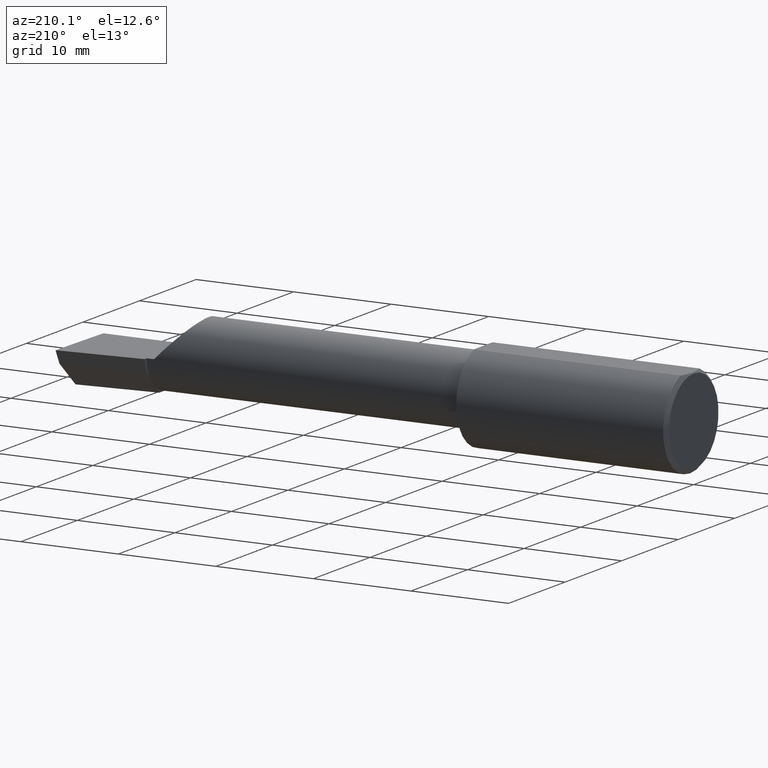
[diagram: clean part render]
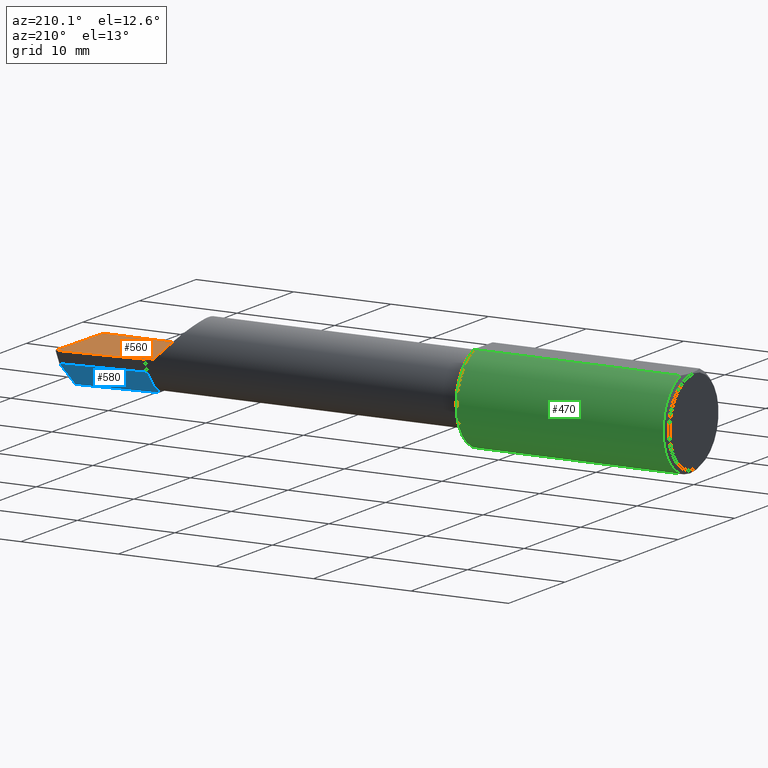
[diagram: same view with three faces highlighted in distinct colors, each labeled with its STEP entity id]
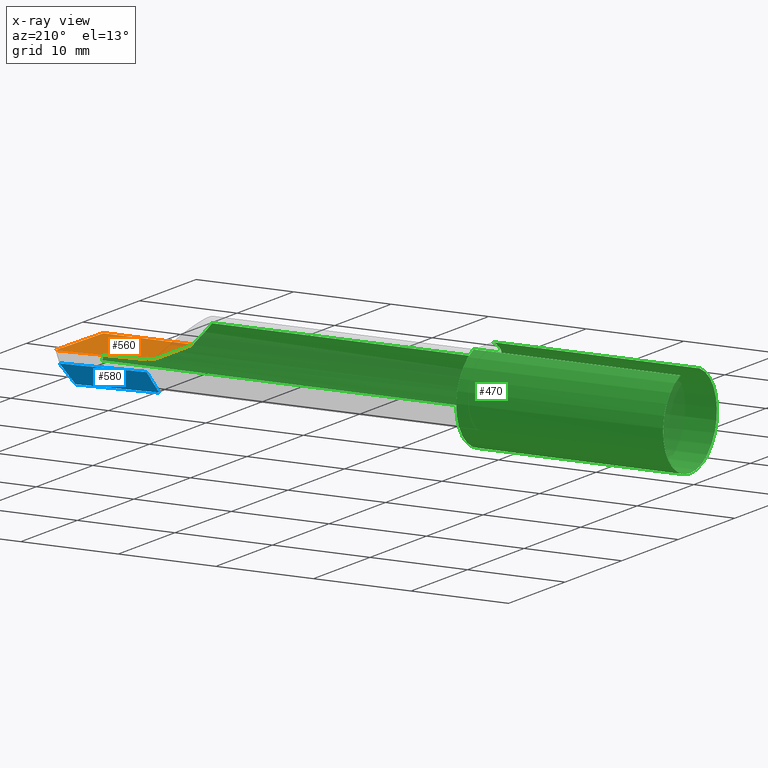
[diagram: x-ray of the same camera — body ghosted, the three highlighted faces saturated]
A machine part, auxiliary view with three faces highlighted in distinct colors.
The next image is the same camera in x-ray (body ghosted, the three faces saturated) — at least one of them is partly hidden behind the body in this view.
Their STEP definitions:

[orange] entity #560 — the highlighted planar face has unit normal (-0, 0, -1).
#4 = DIRECTION ( 'NONE',  ( -1.000000000000000000, -0.000000000000000000, -0.000000000000000000 ) ) ;
#5 = EDGE_CURVE ( 'NONE', #287, #401, #40, .T. ) ;
#12 = VECTOR ( 'NONE', #568, 39.37007874015748854 ) ;
#40 = LINE ( 'NONE', #390, #543 ) ;
#42 = EDGE_CURVE ( 'NONE', #593, #628, #281, .T. ) ;
#44 = EDGE_LOOP ( 'NONE', ( #463, #501, #158, #86, #483, #440 ) ) ;
#64 = CARTESIAN_POINT ( 'NONE',  ( 2.129999999999999893, 0.08264999999999983471, 1.065442715258197396E-16 ) ) ;
#86 = ORIENTED_EDGE ( 'NONE', *, *, #602, .F. ) ;
#114 = PLANE ( 'NONE',  #311 ) ;
#155 = DIRECTION ( 'NONE',  ( -1.000000000000000000, 0.000000000000000000, 1.033731667140896077E-16 ) ) ;
#156 = VERTEX_POINT ( 'NONE', #303 ) ;
#158 = ORIENTED_EDGE ( 'NONE', *, *, #503, .F. ) ;
#169 = LINE ( 'NONE', #605, #212 ) ;
#179 = CARTESIAN_POINT ( 'NONE',  ( 2.129999999999999893, -0.2500000000000000555, 1.065442715258197396E-16 ) ) ;
#190 = CARTESIAN_POINT ( 'NONE',  ( 2.129999999999999893, -0.1873499999999999888, 1.065442715258197396E-16 ) ) ;
#194 = DIRECTION ( 'NONE',  ( 1.000000000000000000, 6.829619984160658046E-18, 0.000000000000000000 ) ) ;
#212 = VECTOR ( 'NONE', #498, 39.37007874015748143 ) ;
#218 = DIRECTION ( 'NONE',  ( -0.000000000000000000, 1.000000000000000000, -0.000000000000000000 ) ) ;
#226 = CARTESIAN_POINT ( 'NONE',  ( 2.490039159128059953, -0.2497391662021650194, 6.932588350567417155E-17 ) ) ;
#245 = DIRECTION ( 'NONE',  ( -1.033731667140896077E-16, 0.000000000000000000, -1.000000000000000000 ) ) ;
#246 = EDGE_CURVE ( 'NONE', #401, #593, #411, .T. ) ;
#281 = LINE ( 'NONE', #383, #573 ) ;
#287 = VERTEX_POINT ( 'NONE', #370 ) ;
#303 = CARTESIAN_POINT ( 'NONE',  ( 2.160000000000000142, 0.09791172361284168624, 3.286754617377316716E-16 ) ) ;
#309 = CARTESIAN_POINT ( 'NONE',  ( 2.500000000000000000, -0.2500000000000000555, 6.829619984160658046E-17 ) ) ;
#311 = AXIS2_PLACEMENT_3D ( 'NONE', #309, #245, #155 ) ;
#321 = VECTOR ( 'NONE', #362, 39.37007874015748143 ) ;
#357 = EDGE_CURVE ( 'NONE', #287, #603, #515, .T. ) ;
#362 = DIRECTION ( 'NONE',  ( -6.829619984160658816E-18, 1.000000000000000000, 7.059994452165177242E-34 ) ) ;
#370 = CARTESIAN_POINT ( 'NONE',  ( 2.491672876940991710, -0.1873499999999999888, 6.915950918908297591E-17 ) ) ;
#372 = CARTESIAN_POINT ( 'NONE',  ( 2.160000000000000142, 0.08265000000000004288, 3.267291166268306182E-16 ) ) ;
#383 = CARTESIAN_POINT ( 'NONE',  ( -9.564882787816662316E-19, 0.08264999999999995961, 3.267291166268304703E-16 ) ) ;
#390 = CARTESIAN_POINT ( 'NONE',  ( 3.377502344341257155E-32, -0.1873499999999999610, 3.267291166268304703E-16 ) ) ;
#401 = VERTEX_POINT ( 'NONE', #190 ) ;
#411 = LINE ( 'NONE', #179, #439 ) ;
#439 = VECTOR ( 'NONE', #218, 39.37007874015748143 ) ;
#440 = ORIENTED_EDGE ( 'NONE', *, *, #246, .F. ) ;
#448 = FACE_OUTER_BOUND ( 'NONE', #44, .T. ) ;
#463 = ORIENTED_EDGE ( 'NONE', *, *, #5, .F. ) ;
#483 = ORIENTED_EDGE ( 'NONE', *, *, #42, .F. ) ;
#495 = CARTESIAN_POINT ( 'NONE',  ( 2.160000000000000142, -0.2500000000000000555, 1.034430765243970311E-16 ) ) ;
#498 = DIRECTION ( 'NONE',  ( 0.9953961983671787417, 0.09584575252022459191, -1.028972571603813720E-16 ) ) ;
#501 = ORIENTED_EDGE ( 'NONE', *, *, #357, .T. ) ;
#503 = EDGE_CURVE ( 'NONE', #156, #603, #169, .T. ) ;
#515 = LINE ( 'NONE', #226, #12 ) ;
#543 = VECTOR ( 'NONE', #4, 39.37007874015748143 ) ;
#546 = CARTESIAN_POINT ( 'NONE',  ( 2.499999999999978684, 0.1306500000000237749, 8.405341369881224661E-14 ) ) ;
#560 = ADVANCED_FACE ( 'NONE', ( #448 ), #114, .F. ) ;
#568 = DIRECTION ( 'NONE',  ( 0.02617694830779364323, 0.9996573249755593693, -2.665804247635780349E-18 ) ) ;
#573 = VECTOR ( 'NONE', #194, 39.37007874015748143 ) ;
#592 = LINE ( 'NONE', #495, #321 ) ;
#593 = VERTEX_POINT ( 'NONE', #64 ) ;
#602 = EDGE_CURVE ( 'NONE', #628, #156, #592, .T. ) ;
#603 = VERTEX_POINT ( 'NONE', #546 ) ;
#605 = CARTESIAN_POINT ( 'NONE',  ( 0.5470260790800316464, -0.05740000000000000657, 2.701812985571356346E-16 ) ) ;
#628 = VERTEX_POINT ( 'NONE', #372 ) ;

[blue] entity #580 — the highlighted planar face has unit normal (-0.0689, 0.716, -0.6947).
#11 = VERTEX_POINT ( 'NONE', #532 ) ;
#14 = DIRECTION ( 'NONE',  ( 0.000000000000000000, 0.6963153109074925462, 0.7177360153954946975 ) ) ;
#16 = CARTESIAN_POINT ( 'NONE',  ( 2.511419111345318811, 0.1163922996227946677, -0.04999999999999999584 ) ) ;
#20 = CARTESIAN_POINT ( 'NONE',  ( 2.491859106488688358, 0.02714641170210404381, -0.1400500000000000633 ) ) ;
#28 = EDGE_CURVE ( 'NONE', #389, #11, #490, .T. ) ;
#51 = VERTEX_POINT ( 'NONE', #528 ) ;
#61 = EDGE_CURVE ( 'NONE', #435, #51, #90, .T. ) ;
#85 = CARTESIAN_POINT ( 'NONE',  ( 2.160000000000000142, 0.06382066673065307782, -0.06931012851386068874 ) ) ;
#90 = LINE ( 'NONE', #285, #136 ) ;
#105 = EDGE_LOOP ( 'NONE', ( #619, #625, #233, #112, #116, #295 ) ) ;
#112 = ORIENTED_EDGE ( 'NONE', *, *, #369, .F. ) ;
#116 = ORIENTED_EDGE ( 'NONE', *, *, #28, .F. ) ;
#118 = EDGE_CURVE ( 'NONE', #201, #389, #159, .T. ) ;
#130 = CARTESIAN_POINT ( 'NONE',  ( 2.493766568580444432, 0.1168246249203733628, -0.04780233936830585728 ) ) ;
#136 = VECTOR ( 'NONE', #205, 39.37007874015748143 ) ;
#159 = LINE ( 'NONE', #16, #332 ) ;
#172 = VECTOR ( 'NONE', #352, 39.37007874015748854 ) ;
#197 = VERTEX_POINT ( 'NONE', #209 ) ;
#201 = VERTEX_POINT ( 'NONE', #459 ) ;
#205 = DIRECTION ( 'NONE',  ( 4.755568962650853567E-18, -0.6963153109074925462, -0.7177360153954948085 ) ) ;
#206 = FACE_OUTER_BOUND ( 'NONE', #105, .T. ) ;
#209 = CARTESIAN_POINT ( 'NONE',  ( 2.480058035321255794, 0.02601009779168069955, -0.1400500000000000633 ) ) ;
#233 = ORIENTED_EDGE ( 'NONE', *, *, #61, .F. ) ;
#258 = DIRECTION ( 'NONE',  ( -0.9953961983671800740, -0.09584575252021031166, 0.000000000000000000 ) ) ;
#278 = DIRECTION ( 'NONE',  ( 4.755568962650853567E-18, -0.6963153109074925462, -0.7177360153954948085 ) ) ;
#285 = CARTESIAN_POINT ( 'NONE',  ( 2.160000000000000142, 0.06382066673065307782, -0.06931012851386068874 ) ) ;
#288 = DIRECTION ( 'NONE',  ( 4.755568962650853567E-18, -0.6963153109074925462, -0.7177360153954948085 ) ) ;
#295 = ORIENTED_EDGE ( 'NONE', *, *, #118, .F. ) ;
#297 = DIRECTION ( 'NONE',  ( -0.06894566448119619773, 0.7160281025913034503, -0.6946583704589934793 ) ) ;
#299 = VECTOR ( 'NONE', #278, 39.37007874015748143 ) ;
#317 = EDGE_CURVE ( 'NONE', #197, #201, #373, .T. ) ;
#323 = VECTOR ( 'NONE', #559, 39.37007874015748854 ) ;
#330 = CARTESIAN_POINT ( 'NONE',  ( 2.160000000000000142, 0.06382066673065307782, -0.06931012851386068874 ) ) ;
#332 = VECTOR ( 'NONE', #258, 39.37007874015748854 ) ;
#350 = LINE ( 'NONE', #20, #172 ) ;
#352 = DIRECTION ( 'NONE',  ( -0.9953961983671800740, -0.09584575252021028391, -1.093478026937437971E-17 ) ) ;
#369 = EDGE_CURVE ( 'NONE', #11, #435, #576, .T. ) ;
#373 = LINE ( 'NONE', #130, #323 ) ;
#389 = VERTEX_POINT ( 'NONE', #433 ) ;
#408 = CARTESIAN_POINT ( 'NONE',  ( 2.511419111345318811, 0.1163922996227946677, -0.04999999999999999584 ) ) ;
#433 = CARTESIAN_POINT ( 'NONE',  ( 2.160000000000000142, 0.08255448787293394319, -0.04999999999999999584 ) ) ;
#435 = VERTEX_POINT ( 'NONE', #485 ) ;
#459 = CARTESIAN_POINT ( 'NONE',  ( 2.493439983562941720, 0.1146611065212078395, -0.04999999999999999584 ) ) ;
#462 = VECTOR ( 'NONE', #288, 39.37007874015748143 ) ;
#485 = CARTESIAN_POINT ( 'NONE',  ( 2.160000000000000142, 0.01441505128072288582, -0.1202356058309980713 ) ) ;
#490 = LINE ( 'NONE', #330, #299 ) ;
#523 = AXIS2_PLACEMENT_3D ( 'NONE', #408, #297, #14 ) ;
#528 = CARTESIAN_POINT ( 'NONE',  ( 2.160000000000000142, -0.004807985797372735411, -0.1400500000000000633 ) ) ;
#532 = CARTESIAN_POINT ( 'NONE',  ( 2.160000000000000142, 0.06495571228477951820, -0.06814016562413281741 ) ) ;
#553 = PLANE ( 'NONE',  #523 ) ;
#559 = DIRECTION ( 'NONE',  ( 0.1053106618240634978, 0.6976485211320199165, 0.7086580314005359593 ) ) ;
#576 = LINE ( 'NONE', #85, #462 ) ;
#580 = ADVANCED_FACE ( 'NONE', ( #206 ), #553, .T. ) ;
#616 = EDGE_CURVE ( 'NONE', #197, #51, #350, .T. ) ;
#619 = ORIENTED_EDGE ( 'NONE', *, *, #317, .F. ) ;
#625 = ORIENTED_EDGE ( 'NONE', *, *, #616, .T. ) ;

[green] entity #470 — the highlighted cylindrical surface (partial cylindrical patch) has radius 4.7587 mm, axis along (-1, -0, -0).
#2 = VERTEX_POINT ( 'NONE', #340 ) ;
#4 = DIRECTION ( 'NONE',  ( -1.000000000000000000, -0.000000000000000000, -0.000000000000000000 ) ) ;
#5 = EDGE_CURVE ( 'NONE', #287, #401, #40, .T. ) ;
#6 = ORIENTED_EDGE ( 'NONE', *, *, #450, .F. ) ;
#8 = CARTESIAN_POINT ( 'NONE',  ( 0.8750000000000002220, -0.1635956445993032027, -0.09130436773856145938 ) ) ;
#24 = DIRECTION ( 'NONE',  ( 0.000000000000000000, 0.000000000000000000, 1.000000000000000000 ) ) ;
#26 = ORIENTED_EDGE ( 'NONE', *, *, #335, .T. ) ;
#27 = DIRECTION ( 'NONE',  ( 1.000000000000000000, 6.829619984160658046E-18, 0.000000000000000000 ) ) ;
#29 = B_SPLINE_CURVE_WITH_KNOTS ( 'NONE', 3,
 ( #414, #33, #518, #35, #468, #613, #511, #324, #320, #225, #607, #319, #419, #171 ),
 .UNSPECIFIED., .F., .F.,
 ( 4, 2, 2, 2, 2, 2, 4 ),
 ( 0.0002471551878304247040, 0.0008987327522055663489, 0.001550310316580707885, 0.002201887880955849530, 0.002527676663143419919, 0.002690571054237202945, 0.002853465445330985537 ),
 .UNSPECIFIED. ) ;
#33 = CARTESIAN_POINT ( 'NONE',  ( 0.8500000000000003109, -0.1045012500212955386, 0.1557348687830034106 ) ) ;
#35 = CARTESIAN_POINT ( 'NONE',  ( 0.8518917549365453423, -0.1247344934163568814, 0.1400506178720499761 ) ) ;
#40 = LINE ( 'NONE', #390, #543 ) ;
#41 = CARTESIAN_POINT ( 'NONE',  ( 0.8750000000000002220, -0.1635956445993029529, 0.09130436773856175081 ) ) ;
#43 = CARTESIAN_POINT ( 'NONE',  ( 0.8637431740823496851, -0.1572750258711010374, -0.1018777902325211648 ) ) ;
#45 = AXIS2_PLACEMENT_3D ( 'NONE', #600, #68, #24 ) ;
#46 =( BOUNDED_CURVE ( )  B_SPLINE_CURVE ( 3, ( #122, #316, #78, #271 ),
 .UNSPECIFIED., .F., .T. ) 
 B_SPLINE_CURVE_WITH_KNOTS ( ( 4, 4 ),
 ( 4.712388980384689674, 5.221437360734125122 ),
 .UNSPECIFIED. ) 
 CURVE ( )  GEOMETRIC_REPRESENTATION_ITEM ( )  RATIONAL_B_SPLINE_CURVE ( ( 1.000000000000000000, 0.9785221379938656705, 0.9785221379938656705, 1.000000000000000000 ) ) 
 REPRESENTATION_ITEM ( '' )  );
#56 = DIRECTION ( 'NONE',  ( -1.000000000000000000, -0.000000000000000000, -0.000000000000000000 ) ) ;
#57 = CARTESIAN_POINT ( 'NONE',  ( 2.481080296960508580, -0.1635956445993030639, -0.09130436773856169530 ) ) ;
#62 = ORIENTED_EDGE ( 'NONE', *, *, #286, .F. ) ;
#68 = DIRECTION ( 'NONE',  ( -1.000000000000000000, -0.000000000000000000, -0.000000000000000000 ) ) ;
#69 = VERTEX_POINT ( 'NONE', #8 ) ;
#78 = CARTESIAN_POINT ( 'NONE',  ( 2.066758987970638284, -0.1792580844883770730, 0.06324101202936138755 ) ) ;
#92 = ORIENTED_EDGE ( 'NONE', *, *, #477, .T. ) ;
#104 = CARTESIAN_POINT ( 'NONE',  ( 2.038695632261437130, -0.1635956445993029529, 0.09130436773856188959 ) ) ;
#107 = CARTESIAN_POINT ( 'NONE',  ( 2.481080296960508580, -0.1635956445993030639, -0.09130436773856169530 ) ) ;
#113 = CARTESIAN_POINT ( 'NONE',  ( 0.8500000000000001998, 0.000000000000000000, 0.000000000000000000 ) ) ;
#122 = CARTESIAN_POINT ( 'NONE',  ( 2.129999999999999893, -0.1873499999999999888, 1.065442715258197396E-16 ) ) ;
#123 = CIRCLE ( 'NONE', #534, 0.1873499999999999888 ) ;
#127 = CARTESIAN_POINT ( 'NONE',  ( 0.8500000000000001998, 0.06597272163553663527, 0.1753499999999999781 ) ) ;
#133 =( BOUNDED_CURVE ( )  B_SPLINE_CURVE ( 3, ( #57, #250, #453, #549 ),
 .UNSPECIFIED., .F., .T. ) 
 B_SPLINE_CURVE_WITH_KNOTS ( ( 4, 4 ),
 ( 0.8516985021657653698, 1.360746882515200484 ),
 .UNSPECIFIED. ) 
 CURVE ( )  GEOMETRIC_REPRESENTATION_ITEM ( )  RATIONAL_B_SPLINE_CURVE ( ( 1.000000000000000000, 0.9785221379938656705, 0.9785221379938656705, 1.000000000000000000 ) ) 
 REPRESENTATION_ITEM ( '' )  );
#141 = CARTESIAN_POINT ( 'NONE',  ( 0.8727799353194347631, -0.1635956445993031472, -0.09130436773856151489 ) ) ;
#143 = CARTESIAN_POINT ( 'NONE',  ( 0.8530417279495582372, -0.1311116946065053468, -0.1340922927843368750 ) ) ;
#146 = EDGE_CURVE ( 'NONE', #520, #598, #371, .T. ) ;
#151 = DIRECTION ( 'NONE',  ( -1.000000000000000000, -0.000000000000000000, -0.000000000000000000 ) ) ;
#167 = VERTEX_POINT ( 'NONE', #599 ) ;
#168 = CARTESIAN_POINT ( 'NONE',  ( 0.8500000000000001998, -0.09715400696864139041, 0.1601908905959922857 ) ) ;
#171 = CARTESIAN_POINT ( 'NONE',  ( 0.8750000000000002220, -0.1635956445993029529, 0.09130436773856175081 ) ) ;
#187 = DIRECTION ( 'NONE',  ( 1.000000000000000000, 0.000000000000000000, 0.000000000000000000 ) ) ;
#189 = EDGE_LOOP ( 'NONE', ( #359, #234, #524, #26, #487, #62, #491, #347, #586, #571, #92, #6, #396 ) ) ;
#190 = CARTESIAN_POINT ( 'NONE',  ( 2.129999999999999893, -0.1873499999999999888, 1.065442715258197396E-16 ) ) ;
#192 = DIRECTION ( 'NONE',  ( 0.000000000000000000, 1.000000000000000000, 0.000000000000000000 ) ) ;
#193 = EDGE_CURVE ( 'NONE', #2, #253, #123, .T. ) ;
#195 = CARTESIAN_POINT ( 'NONE',  ( 0.000000000000000000, 0.000000000000000000, 0.000000000000000000 ) ) ;
#225 = CARTESIAN_POINT ( 'NONE',  ( 0.8668559945294939117, -0.1603175578889970143, 0.09696363432848434383 ) ) ;
#234 = ORIENTED_EDGE ( 'NONE', *, *, #540, .T. ) ;
#242 = CARTESIAN_POINT ( 'NONE',  ( 1.517500000000000071, -0.1635956445993030639, -0.09130436773856169530 ) ) ;
#250 = CARTESIAN_POINT ( 'NONE',  ( 2.484117089522337452, -0.1792580844883771285, -0.06324101202936134591 ) ) ;
#253 = VERTEX_POINT ( 'NONE', #168 ) ;
#268 = LINE ( 'NONE', #312, #282 ) ;
#271 = CARTESIAN_POINT ( 'NONE',  ( 2.038695632261437130, -0.1635956445993029529, 0.09130436773856188959 ) ) ;
#276 = EDGE_CURVE ( 'NONE', #444, #507, #268, .T. ) ;
#282 = VECTOR ( 'NONE', #27, 39.37007874015748143 ) ;
#283 = CARTESIAN_POINT ( 'NONE',  ( 0.8679759419021536582, -0.1612443294219082224, -0.09540922431498190248 ) ) ;
#286 = EDGE_CURVE ( 'NONE', #253, #444, #29, .T. ) ;
#287 = VERTEX_POINT ( 'NONE', #370 ) ;
#293 = CARTESIAN_POINT ( 'NONE',  ( 0.8561458414306046816, -0.1426194794824340029, -0.1217813759115466826 ) ) ;
#296 = CARTESIAN_POINT ( 'NONE',  ( 0.01499999999999999424, 0.000000000000000000, 0.000000000000000000 ) ) ;
#312 = CARTESIAN_POINT ( 'NONE',  ( 1.517500000000000071, -0.1635956445993030639, 0.09130436773856169530 ) ) ;
#313 = CARTESIAN_POINT ( 'NONE',  ( 0.01499999999999999424, 0.000000000000000000, -0.1873499999999999888 ) ) ;
#316 = CARTESIAN_POINT ( 'NONE',  ( 2.097861799102314961, -0.1873500000000000165, 0.03213820089768509858 ) ) ;
#319 = CARTESIAN_POINT ( 'NONE',  ( 0.8709038625689694557, -0.1628809688430621072, 0.09258733509388474003 ) ) ;
#320 = CARTESIAN_POINT ( 'NONE',  ( 0.8637641080978831765, -0.1573043405450771925, 0.1018329020719633965 ) ) ;
#324 = CARTESIAN_POINT ( 'NONE',  ( 0.8622046384587369605, -0.1550630761760524723, 0.1052254855377560416 ) ) ;
#331 = CARTESIAN_POINT ( 'NONE',  ( 0.000000000000000000, 0.06597272163553663527, 0.1753499999999999781 ) ) ;
#335 = EDGE_CURVE ( 'NONE', #401, #507, #46, .T. ) ;
#338 = CARTESIAN_POINT ( 'NONE',  ( 0.8503844419023954826, -0.1115101367984841357, -0.1507946173152222569 ) ) ;
#339 = CARTESIAN_POINT ( 'NONE',  ( 0.8580682074421709382, -0.1478915270140211402, -0.1153063024254923213 ) ) ;
#340 = CARTESIAN_POINT ( 'NONE',  ( 0.8500000000000001998, -0.06597272163553659363, 0.1753499999999999781 ) ) ;
#343 = EDGE_CURVE ( 'NONE', #2, #598, #556, .T. ) ;
#344 = VERTEX_POINT ( 'NONE', #127 ) ;
#346 = CARTESIAN_POINT ( 'NONE',  ( 0.8500000000000001998, -0.09715400696864139041, -0.1601908905959922857 ) ) ;
#347 = ORIENTED_EDGE ( 'NONE', *, *, #343, .T. ) ;
#358 = AXIS2_PLACEMENT_3D ( 'NONE', #296, #56, #447 ) ;
#359 = ORIENTED_EDGE ( 'NONE', *, *, #412, .F. ) ;
#370 = CARTESIAN_POINT ( 'NONE',  ( 2.491672876940991710, -0.1873499999999999888, 6.915950918908297591E-17 ) ) ;
#371 = CIRCLE ( 'NONE', #358, 0.1873499999999999888 ) ;
#374 = CARTESIAN_POINT ( 'NONE',  ( 0.000000000000000000, -0.06597272163553657975, 0.1753499999999999781 ) ) ;
#379 = DIRECTION ( 'NONE',  ( 0.000000000000000000, 0.000000000000000000, 1.000000000000000000 ) ) ;
#381 = CARTESIAN_POINT ( 'NONE',  ( 0.8750000000000002220, -0.1635956445993032027, -0.09130436773856145938 ) ) ;
#384 = CARTESIAN_POINT ( 'NONE',  ( 0.8500000000000001998, 0.000000000000000000, 0.000000000000000000 ) ) ;
#388 = CARTESIAN_POINT ( 'NONE',  ( 0.8621845987149129309, -0.1550322129197698462, -0.1052705638704080626 ) ) ;
#390 = CARTESIAN_POINT ( 'NONE',  ( 3.377502344341257155E-32, -0.1873499999999999610, 3.267291166268304703E-16 ) ) ;
#394 = LINE ( 'NONE', #242, #449 ) ;
#396 = ORIENTED_EDGE ( 'NONE', *, *, #404, .F. ) ;
#398 = VECTOR ( 'NONE', #187, 39.37007874015748143 ) ;
#401 = VERTEX_POINT ( 'NONE', #190 ) ;
#404 = EDGE_CURVE ( 'NONE', #69, #578, #422, .T. ) ;
#409 = CIRCLE ( 'NONE', #587, 0.1873499999999999888 ) ;
#412 = EDGE_CURVE ( 'NONE', #577, #69, #394, .T. ) ;
#414 = CARTESIAN_POINT ( 'NONE',  ( 0.8500000000000001998, -0.09715400696864139041, 0.1601908905959922857 ) ) ;
#419 = CARTESIAN_POINT ( 'NONE',  ( 0.8728009145006652147, -0.1635956445997550079, 0.09130436773775225945 ) ) ;
#422 = B_SPLINE_CURVE_WITH_KNOTS ( 'NONE', 3,
 ( #381, #141, #570, #283, #482, #43, #388, #339, #293, #143, #584, #338, #620, #346 ),
 .UNSPECIFIED., .F., .F.,
 ( 4, 2, 2, 2, 2, 2, 4 ),
 ( 1.968340875534775316E-07, 0.0001667114270246293039, 0.0003332260199617051379, 0.0006662552058358517642, 0.001332313577584145559, 0.001998371949332439137, 0.002664430321080732932 ),
 .UNSPECIFIED. ) ;
#443 = CYLINDRICAL_SURFACE ( 'NONE', #601, 0.1873499999999999888 ) ;
#444 = VERTEX_POINT ( 'NONE', #41 ) ;
#447 = DIRECTION ( 'NONE',  ( 0.000000000000000000, 0.000000000000000000, 1.000000000000000000 ) ) ;
#449 = VECTOR ( 'NONE', #582, 39.37007874015748143 ) ;
#450 = EDGE_CURVE ( 'NONE', #578, #344, #409, .T. ) ;
#453 = CARTESIAN_POINT ( 'NONE',  ( 2.487725449370724817, -0.1873500000000000443, -0.03213820089768505694 ) ) ;
#455 = DIRECTION ( 'NONE',  ( 0.000000000000000000, 1.000000000000000000, 0.000000000000000000 ) ) ;
#468 = CARTESIAN_POINT ( 'NONE',  ( 0.8530259122056834675, -0.1310442973014115942, 0.1341609063345041430 ) ) ;
#470 = ADVANCED_FACE ( 'NONE', ( #575 ), #443, .T. ) ;
#477 = EDGE_CURVE ( 'NONE', #167, #344, #536, .T. ) ;
#478 = VECTOR ( 'NONE', #562, 39.37007874015748143 ) ;
#482 = CARTESIAN_POINT ( 'NONE',  ( 0.8668149093790887827, -0.1602818635245158996, -0.09702252612905275242 ) ) ;
#487 = ORIENTED_EDGE ( 'NONE', *, *, #276, .F. ) ;
#491 = ORIENTED_EDGE ( 'NONE', *, *, #193, .F. ) ;
#492 = DIRECTION ( 'NONE',  ( 1.000000000000000000, 6.829619984160658046E-18, 0.000000000000000000 ) ) ;
#493 = DIRECTION ( 'NONE',  ( 1.000000000000000000, 6.829619984160658046E-18, 0.000000000000000000 ) ) ;
#505 = CARTESIAN_POINT ( 'NONE',  ( 0.8500000000000001998, -0.09715400696864139041, -0.1601908905959922857 ) ) ;
#507 = VERTEX_POINT ( 'NONE', #104 ) ;
#511 = CARTESIAN_POINT ( 'NONE',  ( 0.8580729541431403318, -0.1479074971576200270, 0.1152872342625229363 ) ) ;
#518 = CARTESIAN_POINT ( 'NONE',  ( 0.8503837281337299769, -0.1114837668894153311, 0.1508119329971095435 ) ) ;
#520 = VERTEX_POINT ( 'NONE', #313 ) ;
#524 = ORIENTED_EDGE ( 'NONE', *, *, #5, .T. ) ;
#534 = AXIS2_PLACEMENT_3D ( 'NONE', #113, #492, #455 ) ;
#536 = LINE ( 'NONE', #331, #398 ) ;
#540 = EDGE_CURVE ( 'NONE', #577, #287, #133, .T. ) ;
#543 = VECTOR ( 'NONE', #4, 39.37007874015748143 ) ;
#549 = CARTESIAN_POINT ( 'NONE',  ( 2.491672876940991710, -0.1873499999999999888, 6.915950918908297591E-17 ) ) ;
#556 = LINE ( 'NONE', #374, #478 ) ;
#562 = DIRECTION ( 'NONE',  ( -1.000000000000000000, -0.000000000000000000, -0.000000000000000000 ) ) ;
#570 = CARTESIAN_POINT ( 'NONE',  ( 0.8708814992308701042, -0.1628722075910992162, -0.09260290410947841222 ) ) ;
#571 = ORIENTED_EDGE ( 'NONE', *, *, #609, .F. ) ;
#575 = FACE_OUTER_BOUND ( 'NONE', #189, .T. ) ;
#577 = VERTEX_POINT ( 'NONE', #107 ) ;
#578 = VERTEX_POINT ( 'NONE', #505 ) ;
#582 = DIRECTION ( 'NONE',  ( -1.000000000000000000, -6.829619984160658046E-18, -0.000000000000000000 ) ) ;
#584 = CARTESIAN_POINT ( 'NONE',  ( 0.8519033967903075766, -0.1248165254919063882, -0.1399798634953943743 ) ) ;
#586 = ORIENTED_EDGE ( 'NONE', *, *, #146, .F. ) ;
#587 = AXIS2_PLACEMENT_3D ( 'NONE', #384, #493, #192 ) ;
#589 = CARTESIAN_POINT ( 'NONE',  ( 0.01499999999999997863, -0.06597272163553657975, 0.1753499999999999781 ) ) ;
#598 = VERTEX_POINT ( 'NONE', #589 ) ;
#599 = CARTESIAN_POINT ( 'NONE',  ( 0.01499999999999999424, 0.06597272163553663527, 0.1753499999999999781 ) ) ;
#600 = CARTESIAN_POINT ( 'NONE',  ( 0.01499999999999999424, 0.000000000000000000, 0.000000000000000000 ) ) ;
#601 = AXIS2_PLACEMENT_3D ( 'NONE', #195, #151, #379 ) ;
#607 = CARTESIAN_POINT ( 'NONE',  ( 0.8680018598681171760, -0.1612625562479370889, 0.09537826053888165401 ) ) ;
#608 = CIRCLE ( 'NONE', #45, 0.1873499999999999888 ) ;
#609 = EDGE_CURVE ( 'NONE', #167, #520, #608, .T. ) ;
#613 = CARTESIAN_POINT ( 'NONE',  ( 0.8561423219567506626, -0.1426151417460931881, 0.1217894822571231328 ) ) ;
#620 = CARTESIAN_POINT ( 'NONE',  ( 0.8499999999999999778, -0.1045082199249682403, -0.1557306416133591997 ) ) ;